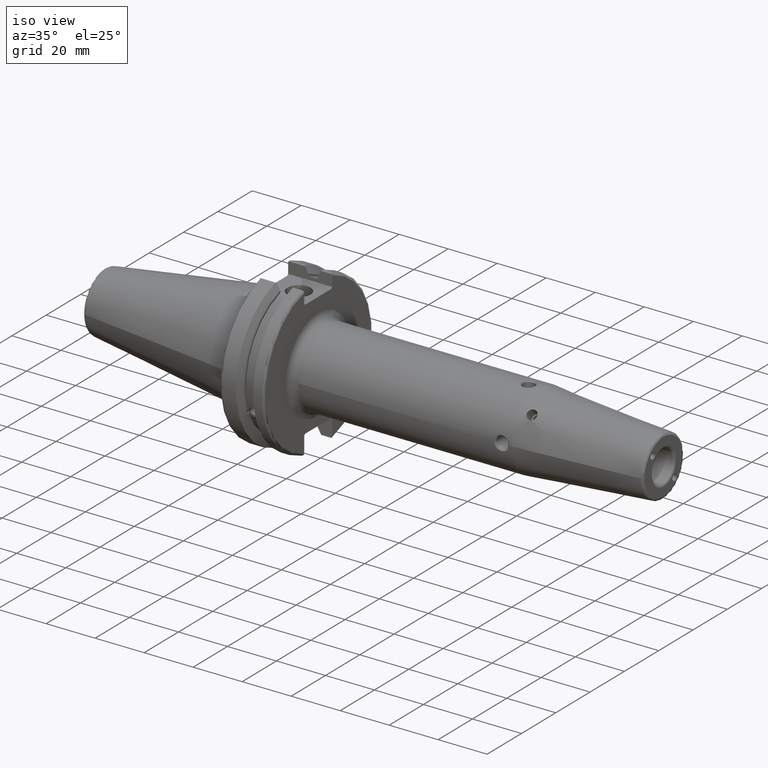
[diagram: clean part render]
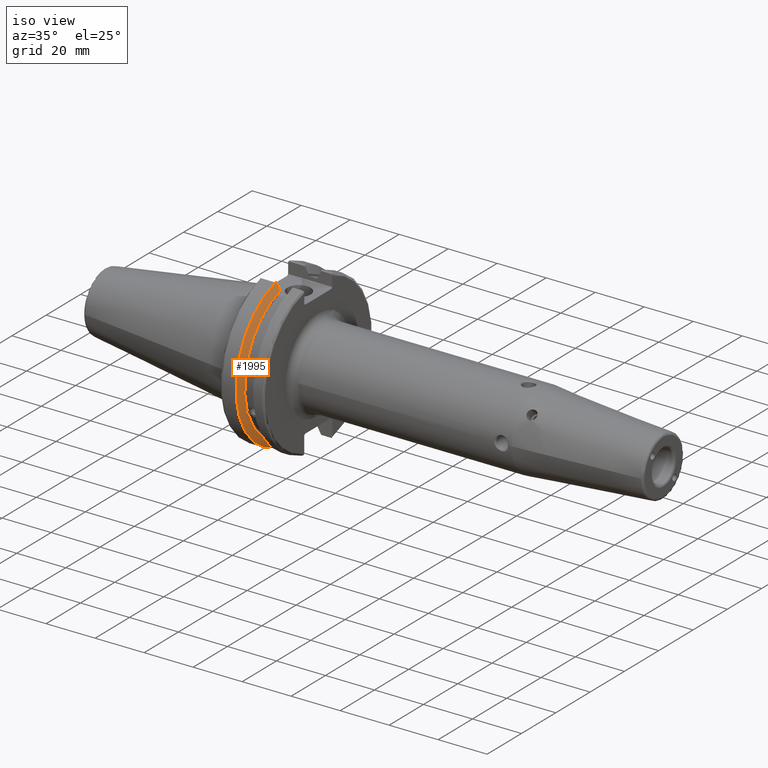
[diagram: same view with one face highlighted and labeled with its STEP entity id]
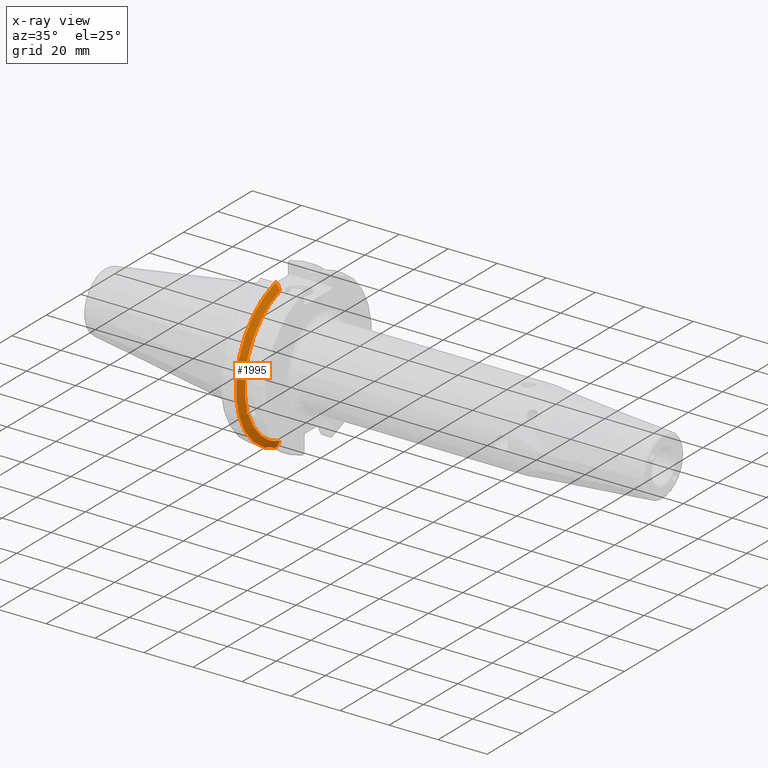
[diagram: x-ray of the same camera — body ghosted, the highlighted face saturated]
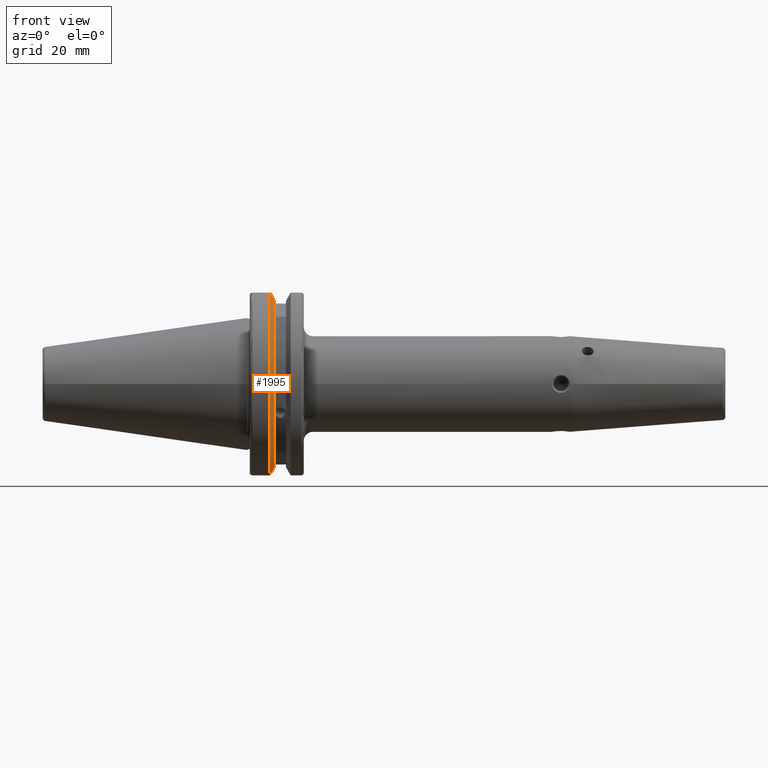
[diagram: same view with one face highlighted and labeled with its STEP entity id]
A machine part, iso view. The second image highlights one B-rep face of the part: STEP entity #1995.
The next image is the same camera in x-ray: the body ghosted, the highlighted face saturated — about 0% of this face is hidden behind the body in this view.
A second angle (front view) of the same face is appended — the face is thin or edge-on in the first view.
In plain terms, the highlighted conical surface has half-angle 60 deg.
Its self-contained STEP definition (entity closure, byte-faithful):
#25=(
BOUNDED_CURVE()
B_SPLINE_CURVE(2,(#4512,#4513,#4514),.UNSPECIFIED.,.F.,.F.)
B_SPLINE_CURVE_WITH_KNOTS((3,3),(0.,0.27654914279601),.UNSPECIFIED.)
CURVE()
GEOMETRIC_REPRESENTATION_ITEM()
RATIONAL_B_SPLINE_CURVE((1.,1.00095203903532,1.00031614444885))
REPRESENTATION_ITEM('')
);
#26=(
BOUNDED_CURVE()
B_SPLINE_CURVE(2,(#4524,#4525,#4526),.UNSPECIFIED.,.F.,.F.)
B_SPLINE_CURVE_WITH_KNOTS((3,3),(0.0550586467392668,0.331607789535851),
 .UNSPECIFIED.)
CURVE()
GEOMETRIC_REPRESENTATION_ITEM()
RATIONAL_B_SPLINE_CURVE((1.0003161444496,1.00095203903759,1.))
REPRESENTATION_ITEM('')
);
#27=(
BOUNDED_CURVE()
B_SPLINE_CURVE(2,(#4563,#4564,#4565),.UNSPECIFIED.,.F.,.F.)
B_SPLINE_CURVE_WITH_KNOTS((3,3),(0.,0.0639048713675873),.UNSPECIFIED.)
CURVE()
GEOMETRIC_REPRESENTATION_ITEM()
RATIONAL_B_SPLINE_CURVE((1.,1.00028444218292,1.00047644010589))
REPRESENTATION_ITEM('')
);
#28=(
BOUNDED_CURVE()
B_SPLINE_CURVE(2,(#4571,#4572,#4573),.UNSPECIFIED.,.F.,.F.)
B_SPLINE_CURVE_WITH_KNOTS((3,3),(0.329353533631225,0.393258405001025),
 .UNSPECIFIED.)
CURVE()
GEOMETRIC_REPRESENTATION_ITEM()
RATIONAL_B_SPLINE_CURVE((1.00047644010574,1.00028444218284,1.))
REPRESENTATION_ITEM('')
);
#148=CONICAL_SURFACE('',#2226,30.3546886482472,1.0471975511966);
#253=FACE_OUTER_BOUND('',#386,.T.);
#386=EDGE_LOOP('',(#1827,#1828,#1829,#1830,#1831,#1832,#1833,#1834));
#670=CIRCLE('',#2119,28.9593772964944);
#688=CIRCLE('',#2170,31.75);
#711=CIRCLE('',#2227,28.9593772964944);
#745=B_SPLINE_CURVE_WITH_KNOTS('',3,(#4153,#4154,#4155,#4156,#4157,#4158,
#4159,#4160,#4161,#4162,#4163,#4164,#4165,#4166),.UNSPECIFIED.,.F.,.F.,
(4,2,2,2,2,2,4),(0.451995700189025,0.464547828547661,0.504528771685166,
0.544509714822671,0.584490657960176,0.624471601097681,0.637023729456317),
 .UNSPECIFIED.);
#853=VERTEX_POINT('',#4150);
#854=VERTEX_POINT('',#4152);
#871=VERTEX_POINT('',#4245);
#921=VERTEX_POINT('',#4509);
#922=VERTEX_POINT('',#4511);
#925=VERTEX_POINT('',#4523);
#931=VERTEX_POINT('',#4561);
#932=VERTEX_POINT('',#4567);
#1082=EDGE_CURVE('',#854,#853,#745,.T.);
#1106=EDGE_CURVE('',#854,#871,#670,.T.);
#1177=EDGE_CURVE('',#922,#921,#25,.T.);
#1183=EDGE_CURVE('',#925,#871,#26,.T.);
#1193=EDGE_CURVE('',#931,#921,#27,.T.);
#1195=EDGE_CURVE('',#931,#932,#688,.T.);
#1196=EDGE_CURVE('',#925,#932,#28,.T.);
#1256=EDGE_CURVE('',#922,#853,#711,.T.);
#1827=ORIENTED_EDGE('',*,*,#1082,.T.);
#1828=ORIENTED_EDGE('',*,*,#1256,.F.);
#1829=ORIENTED_EDGE('',*,*,#1177,.T.);
#1830=ORIENTED_EDGE('',*,*,#1193,.F.);
#1831=ORIENTED_EDGE('',*,*,#1195,.T.);
#1832=ORIENTED_EDGE('',*,*,#1196,.F.);
#1833=ORIENTED_EDGE('',*,*,#1183,.T.);
#1834=ORIENTED_EDGE('',*,*,#1106,.F.);
#1995=ADVANCED_FACE('',(#253),#148,.T.);
#2119=AXIS2_PLACEMENT_3D('',#4246,#2480,#2481);
#2170=AXIS2_PLACEMENT_3D('',#4569,#2617,#2618);
#2226=AXIS2_PLACEMENT_3D('',#4723,#2759,#2760);
#2227=AXIS2_PLACEMENT_3D('',#4724,#2761,#2762);
#2480=DIRECTION('center_axis',(1.,0.,0.));
#2481=DIRECTION('ref_axis',(0.,0.,-1.));
#2617=DIRECTION('center_axis',(1.,0.,0.));
#2618=DIRECTION('ref_axis',(0.,0.,-1.));
#2759=DIRECTION('center_axis',(-1.,0.,0.));
#2760=DIRECTION('ref_axis',(0.,-1.,-1.22464679914735E-16));
#2761=DIRECTION('center_axis',(1.,0.,0.));
#2762=DIRECTION('ref_axis',(0.,0.,-1.));
#4150=CARTESIAN_POINT('',(9.261,-27.4956274489925,-9.09043478536247));
#4152=CARTESIAN_POINT('',(9.261,-26.9060914640648,-10.7101715919071));
#4153=CARTESIAN_POINT('Ctrl Pts',(9.26099999999999,-26.9060914640648,-10.7101715919071));
#4154=CARTESIAN_POINT('Ctrl Pts',(9.24687959280038,-26.9406927482839,-10.6893765730703));
#4155=CARTESIAN_POINT('Ctrl Pts',(9.23340701821433,-26.9744191989197,-10.6676007180673));
#4156=CARTESIAN_POINT('Ctrl Pts',(9.18001855884095,-27.1113422433189,-10.5723885976054));
#4157=CARTESIAN_POINT('Ctrl Pts',(9.14188029158246,-27.2180531796526,-10.4801333026531));
#4158=CARTESIAN_POINT('Ctrl Pts',(9.08968935539424,-27.3968610665578,-10.2639559818059));
#4159=CARTESIAN_POINT('Ctrl Pts',(9.076,-27.4684373304961,-10.139516340139));
#4160=CARTESIAN_POINT('Ctrl Pts',(9.076,-27.559599249844,-9.8890510252165));
#4161=CARTESIAN_POINT('Ctrl Pts',(9.08968935539424,-27.5847569104122,-9.74771639360671));
#4162=CARTESIAN_POINT('Ctrl Pts',(9.14188029158246,-27.5867382255984,-9.46717946402648));
#4163=CARTESIAN_POINT('Ctrl Pts',(9.18001855884095,-27.5642934663232,-9.32791534028656));
#4164=CARTESIAN_POINT('Ctrl Pts',(9.23340701821433,-27.5206055003512,-9.16696618806878));
#4165=CARTESIAN_POINT('Ctrl Pts',(9.24687959280038,-27.5087667900418,-9.12860597076218));
#4166=CARTESIAN_POINT('Ctrl Pts',(9.261,-27.4956274489925,-9.09043478536247));
#4245=CARTESIAN_POINT('',(9.261,-8.19,-27.7771386827498));
#4246=CARTESIAN_POINT('Origin',(9.261,0.,0.));
#4509=CARTESIAN_POINT('',(7.92858530351256,-8.19,30.1755016258903));
#4511=CARTESIAN_POINT('',(9.261,-8.19,27.7771386827498));
#4512=CARTESIAN_POINT('Ctrl Pts',(9.261,-8.19,27.7771386827498));
#4513=CARTESIAN_POINT('Ctrl Pts',(8.62236356152083,-8.19,28.930368953976));
#4514=CARTESIAN_POINT('Ctrl Pts',(7.92858530351256,-8.19,30.1755016258903));
#4523=CARTESIAN_POINT('',(7.92858530351256,-8.19,-30.1755016258903));
#4524=CARTESIAN_POINT('Ctrl Pts',(7.92858530351256,-8.19,-30.1755016258903));
#4525=CARTESIAN_POINT('Ctrl Pts',(8.62236356152658,-8.19,-28.9303689539657));
#4526=CARTESIAN_POINT('Ctrl Pts',(9.261,-8.19,-27.7771386827498));
#4561=CARTESIAN_POINT('',(7.64983323092436,-8.67204822802685,30.5427254764662));
#4563=CARTESIAN_POINT('Ctrl Pts',(7.64983323092436,-8.67204822802685,30.5427254764662));
#4564=CARTESIAN_POINT('Ctrl Pts',(7.79089148121629,-8.42917748262643,30.357706789263));
#4565=CARTESIAN_POINT('Ctrl Pts',(7.92858530351256,-8.19,30.1755016258903));
#4567=CARTESIAN_POINT('',(7.64983323092436,-8.67204822802685,-30.5427254764662));
#4569=CARTESIAN_POINT('Origin',(7.64983323092436,0.,0.));
#4571=CARTESIAN_POINT('Ctrl Pts',(7.92858530351256,-8.19,-30.1755016258903));
#4572=CARTESIAN_POINT('Ctrl Pts',(7.7908914812116,-8.42917748263465,-30.3577067892692));
#4573=CARTESIAN_POINT('Ctrl Pts',(7.64983323092436,-8.67204822802686,-30.5427254764662));
#4723=CARTESIAN_POINT('Origin',(8.45541661546218,0.,0.));
#4724=CARTESIAN_POINT('Origin',(9.261,0.,0.));